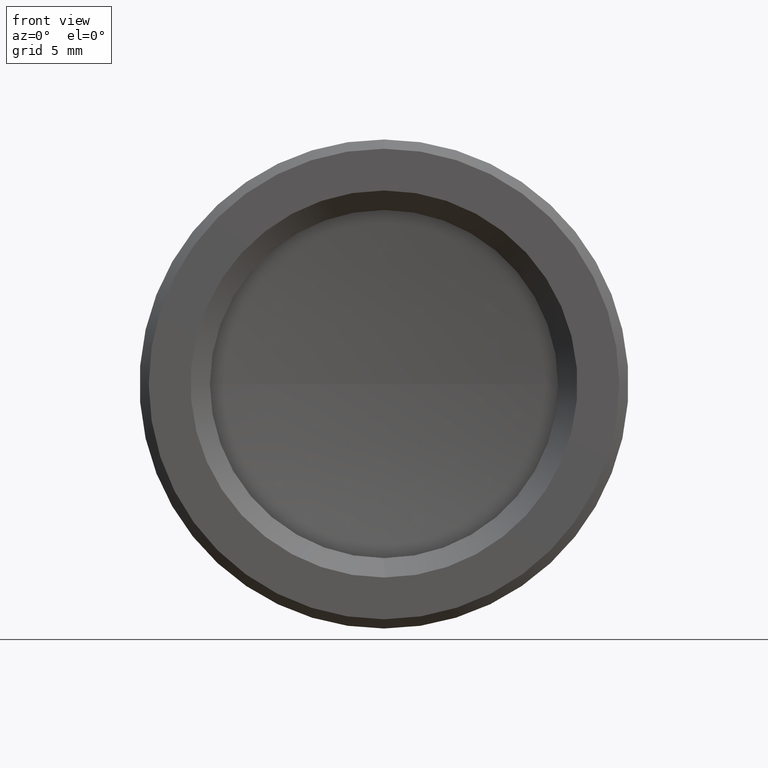
[diagram: clean part render]
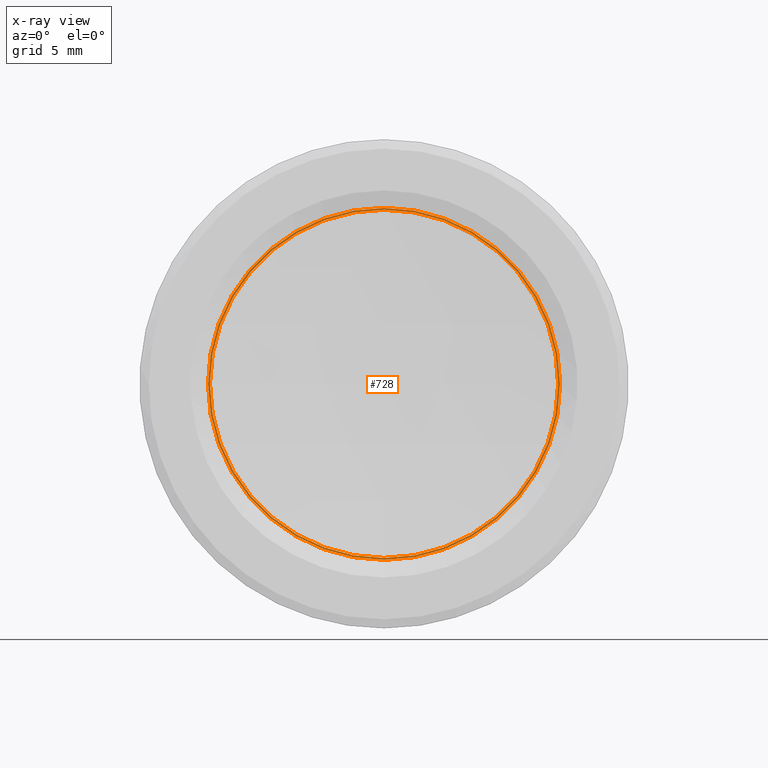
[diagram: x-ray — body ghosted, one internal face saturated and labeled with its STEP entity id]
A machine part, front view, then the same camera in x-ray: the body is ghosted and one INTERNAL B-rep face — a face not visible from any outside direction — is saturated and labeled: STEP entity #728.
In plain terms, the highlighted planar face has unit normal (0, -1, -0).
Its self-contained STEP definition (entity closure, byte-faithful):
#80 = CIRCLE ( 'NONE', #232, 9.400000000017826100 ) ;
#142 = AXIS2_PLACEMENT_3D ( 'NONE', #442, #293, #572 ) ;
#161 = DIRECTION ( 'NONE',  ( 0.0000000000000000000, 0.0000000000000000000, -1.000000000000000000 ) ) ;
#173 = VERTEX_POINT ( 'NONE', #503 ) ;
#192 = CARTESIAN_POINT ( 'NONE',  ( 0.0000000000000000000, 1.347133364283763300, -9.400000000017826100 ) ) ;
#232 = AXIS2_PLACEMENT_3D ( 'NONE', #862, #326, #161 ) ;
#285 = CARTESIAN_POINT ( 'NONE',  ( 9.500000000037527300, 1.347133364274895700, 0.0000000000000000000 ) ) ;
#293 = DIRECTION ( 'NONE',  ( -0.0000000000000000000, -1.000000000000000000, -0.0000000000000000000 ) ) ;
#326 = DIRECTION ( 'NONE',  ( -0.0000000000000000000, -1.000000000000000000, -0.0000000000000000000 ) ) ;
#350 = ORIENTED_EDGE ( 'NONE', *, *, #414, .T. ) ;
#359 = DIRECTION ( 'NONE',  ( 0.0000000000000000000, -1.000000000000000000, -0.0000000000000000000 ) ) ;
#380 = FACE_OUTER_BOUND ( 'NONE', #1004, .T. ) ;
#414 = EDGE_CURVE ( 'NONE', #605, #540, #687, .T. ) ;
#419 = EDGE_LOOP ( 'NONE', ( #855, #350 ) ) ;
#432 = DIRECTION ( 'NONE',  ( 0.0000000000000000000, 0.0000000000000000000, -1.000000000000000000 ) ) ;
#442 = CARTESIAN_POINT ( 'NONE',  ( 0.0000000000000000000, 1.347133364283763300, 0.0000000000000000000 ) ) ;
#451 = CARTESIAN_POINT ( 'NONE',  ( 0.0000000000000000000, 1.347133364274896200, 0.0000000000000000000 ) ) ;
#455 = ORIENTED_EDGE ( 'NONE', *, *, #1045, .F. ) ;
#473 = CIRCLE ( 'NONE', #655, 9.500000000038198800 ) ;
#484 = DIRECTION ( 'NONE',  ( 0.0000000000000000000, 0.0000000000000000000, -1.000000000000000000 ) ) ;
#498 = AXIS2_PLACEMENT_3D ( 'NONE', #1106, #896, #484 ) ;
#503 = CARTESIAN_POINT ( 'NONE',  ( -9.500000000038198800, 1.347133364274895700, 1.163414459194581400E-015 ) ) ;
#505 = CIRCLE ( 'NONE', #498, 9.500000000038198800 ) ;
#507 = DIRECTION ( 'NONE',  ( -0.0000000000000000000, -1.000000000000000000, -0.0000000000000000000 ) ) ;
#540 = VERTEX_POINT ( 'NONE', #192 ) ;
#572 = DIRECTION ( 'NONE',  ( 0.0000000000000000000, 0.0000000000000000000, -1.000000000000000000 ) ) ;
#605 = VERTEX_POINT ( 'NONE', #1103 ) ;
#655 = AXIS2_PLACEMENT_3D ( 'NONE', #451, #507, #432 ) ;
#687 = CIRCLE ( 'NONE', #142, 9.400000000017826100 ) ;
#728 = ADVANCED_FACE ( 'NONE', ( #380, #1096 ), #853, .F. ) ;
#768 = CARTESIAN_POINT ( 'NONE',  ( -1.194566837416007400E-010, 1.347133364279329700, 0.0000000000000000000 ) ) ;
#778 = AXIS2_PLACEMENT_3D ( 'NONE', #768, #359, #1201 ) ;
#833 = ORIENTED_EDGE ( 'NONE', *, *, #920, .F. ) ;
#853 = PLANE ( 'NONE',  #778 ) ;
#855 = ORIENTED_EDGE ( 'NONE', *, *, #874, .T. ) ;
#862 = CARTESIAN_POINT ( 'NONE',  ( 0.0000000000000000000, 1.347133364283763300, 0.0000000000000000000 ) ) ;
#874 = EDGE_CURVE ( 'NONE', #540, #605, #80, .T. ) ;
#896 = DIRECTION ( 'NONE',  ( -0.0000000000000000000, -1.000000000000000000, -0.0000000000000000000 ) ) ;
#920 = EDGE_CURVE ( 'NONE', #933, #173, #505, .T. ) ;
#933 = VERTEX_POINT ( 'NONE', #285 ) ;
#1004 = EDGE_LOOP ( 'NONE', ( #833, #455 ) ) ;
#1045 = EDGE_CURVE ( 'NONE', #173, #933, #473, .T. ) ;
#1096 = FACE_BOUND ( 'NONE', #419, .T. ) ;
#1103 = CARTESIAN_POINT ( 'NONE',  ( 1.151167991200695100E-015, 1.347133364283763300, 9.400000000017826100 ) ) ;
#1106 = CARTESIAN_POINT ( 'NONE',  ( 0.0000000000000000000, 1.347133364274896200, 0.0000000000000000000 ) ) ;
#1201 = DIRECTION ( 'NONE',  ( 0.0000000000000000000, 0.0000000000000000000, -1.000000000000000000 ) ) ;